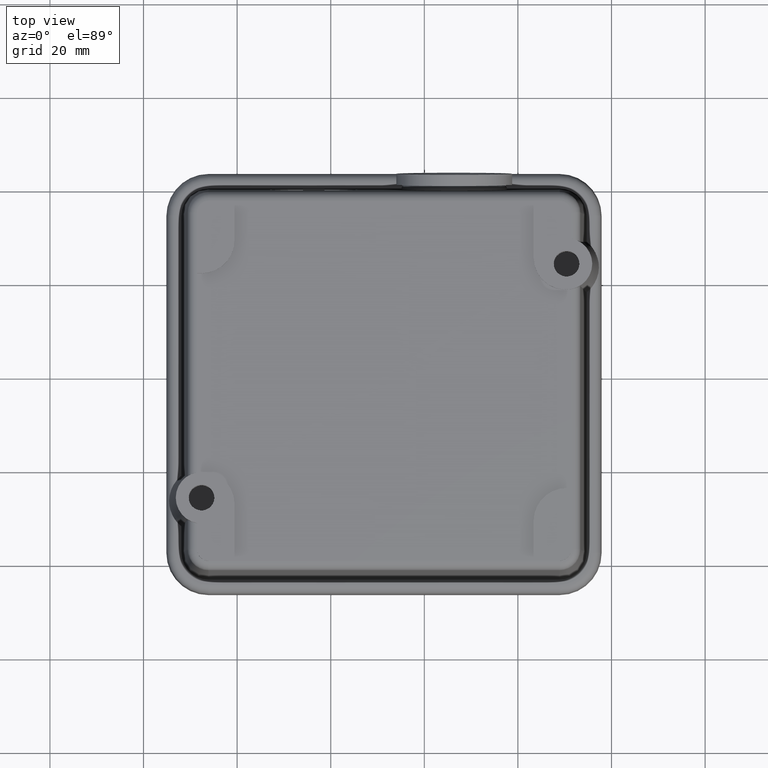
[diagram: clean part render]
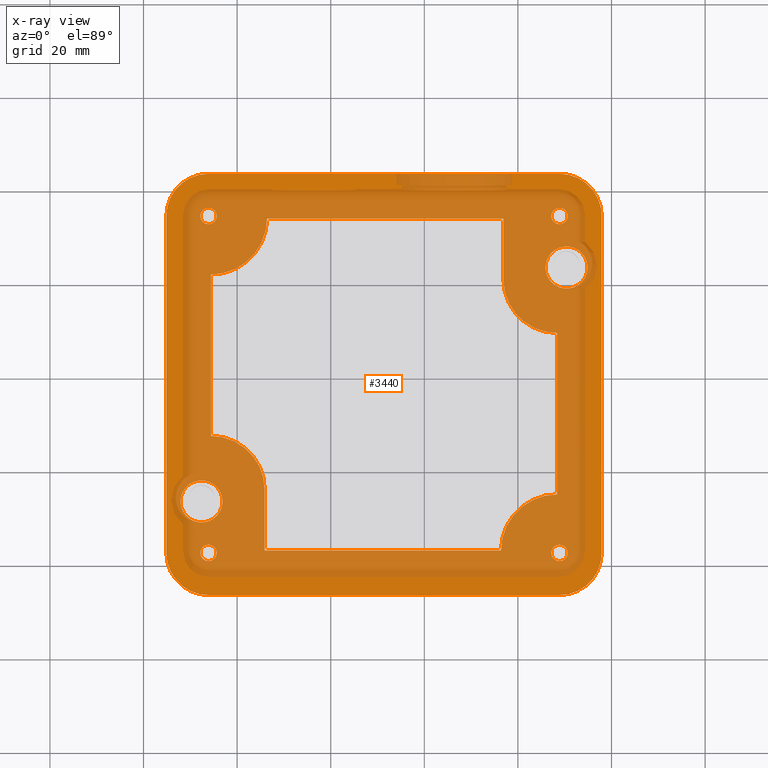
[diagram: x-ray — body ghosted, one internal face saturated and labeled with its STEP entity id]
A machine part, top view, then the same camera in x-ray: the body is ghosted and one INTERNAL B-rep face — a face not visible from any outside direction — is saturated and labeled: STEP entity #3440.
In plain terms, the highlighted planar face has unit normal (0, 0, 1).
Its self-contained STEP definition (entity closure, byte-faithful):
#1539=CARTESIAN_POINT('',(-7.864908437115615,-17.900412990563499,0.0));
#1540=VERTEX_POINT('',#1539);
#1541=CARTESIAN_POINT('',(-6.114908437115614,-17.900412990563499,0.0));
#1542=DIRECTION('',(0.0,0.0,1.0));
#1543=DIRECTION('',(1.0,0.0,0.0));
#1544=AXIS2_PLACEMENT_3D('',#1541,#1542,#1543);
#1545=CIRCLE('',#1544,1.750000000000000);
#1546=EDGE_CURVE('',#1540,#1540,#1545,.T.);
#1576=CARTESIAN_POINT('',(67.135091562884398,-17.900412990563488,0.0));
#1577=VERTEX_POINT('',#1576);
#1578=CARTESIAN_POINT('',(68.885091562884384,-17.900412990563488,0.0));
#1579=DIRECTION('',(0.0,0.0,1.0));
#1580=DIRECTION('',(1.0,0.0,0.0));
#1581=AXIS2_PLACEMENT_3D('',#1578,#1579,#1580);
#1582=CIRCLE('',#1581,1.750000000000000);
#1583=EDGE_CURVE('',#1577,#1577,#1582,.T.);
#1613=CARTESIAN_POINT('',(-7.864908437115612,54.099587009436505,0.0));
#1614=VERTEX_POINT('',#1613);
#1615=CARTESIAN_POINT('',(-6.114908437115611,54.099587009436505,0.0));
#1616=DIRECTION('',(0.0,0.0,1.0));
#1617=DIRECTION('',(1.0,0.0,0.0));
#1618=AXIS2_PLACEMENT_3D('',#1615,#1616,#1617);
#1619=CIRCLE('',#1618,1.750000000000000);
#1620=EDGE_CURVE('',#1614,#1614,#1619,.T.);
#1650=CARTESIAN_POINT('',(67.135091562884398,54.099587009436505,0.0));
#1651=VERTEX_POINT('',#1650);
#1652=CARTESIAN_POINT('',(68.885091562884384,54.099587009436505,0.0));
#1653=DIRECTION('',(0.0,0.0,1.0));
#1654=DIRECTION('',(1.0,0.0,0.0));
#1655=AXIS2_PLACEMENT_3D('',#1652,#1653,#1654);
#1656=CIRCLE('',#1655,1.750000000000000);
#1657=EDGE_CURVE('',#1651,#1651,#1656,.T.);
#2082=CARTESIAN_POINT('',(77.885091562884398,54.099587009436490,0.0));
#2083=VERTEX_POINT('',#2082);
#2090=CARTESIAN_POINT('',(68.885091562884384,63.099587009436497,0.0));
#2091=VERTEX_POINT('',#2090);
#2092=CARTESIAN_POINT('',(68.885091562884384,54.099587009436490,0.0));
#2093=DIRECTION('',(0.0,0.0,1.0));
#2094=DIRECTION('',(1.0,0.0,0.0));
#2095=AXIS2_PLACEMENT_3D('',#2092,#2093,#2094);
#2096=CIRCLE('',#2095,8.999999999999986);
#2097=EDGE_CURVE('',#2083,#2091,#2096,.T.);
#2114=CARTESIAN_POINT('',(77.885091562884384,-17.900412990563552,0.0));
#2115=VERTEX_POINT('',#2114);
#2122=CARTESIAN_POINT('',(77.885091562884384,-17.900412990563552,0.0));
#2123=DIRECTION('',(0.0,1.0,0.0));
#2124=VECTOR('',#2123,72.000000000000043);
#2125=LINE('',#2122,#2124);
#2126=EDGE_CURVE('',#2115,#2083,#2125,.T.);
#2138=CARTESIAN_POINT('',(68.885091562884369,-26.900412990563503,0.0));
#2139=VERTEX_POINT('',#2138);
#2146=CARTESIAN_POINT('',(68.885091562884469,-17.900412990563584,0.0));
#2147=DIRECTION('',(0.0,0.0,1.0));
#2148=DIRECTION('',(0.0,-1.0,0.0));
#2149=AXIS2_PLACEMENT_3D('',#2146,#2147,#2148);
#2150=CIRCLE('',#2149,8.999999999999918);
#2151=EDGE_CURVE('',#2139,#2115,#2150,.T.);
#2163=CARTESIAN_POINT('',(-6.114908437115617,-26.900412990563520,0.0));
#2164=VERTEX_POINT('',#2163);
#2171=CARTESIAN_POINT('',(-6.114908437115617,-26.900412990563520,0.0));
#2172=DIRECTION('',(1.0,0.0,0.0));
#2173=VECTOR('',#2172,74.999999999999986);
#2174=LINE('',#2171,#2173);
#2175=EDGE_CURVE('',#2164,#2139,#2174,.T.);
#2697=CARTESIAN_POINT('',(65.885091562884412,43.099587009436448,0.0));
#2698=VERTEX_POINT('',#2697);
#2699=CARTESIAN_POINT('',(70.385091562884426,43.099587009436448,0.0));
#2700=DIRECTION('',(0.0,0.0,1.0));
#2701=DIRECTION('',(-1.0,0.0,0.0));
#2702=AXIS2_PLACEMENT_3D('',#2699,#2700,#2701);
#2703=CIRCLE('',#2702,4.500000000000000);
#2704=EDGE_CURVE('',#2698,#2698,#2703,.T.);
#2799=CARTESIAN_POINT('',(-12.114908437115595,-6.900412990563566,0.0));
#2800=VERTEX_POINT('',#2799);
#2801=CARTESIAN_POINT('',(-7.614908437115594,-6.900412990563566,0.0));
#2802=DIRECTION('',(0.0,0.0,1.0));
#2803=DIRECTION('',(-1.0,0.0,0.0));
#2804=AXIS2_PLACEMENT_3D('',#2801,#2802,#2803);
#2805=CIRCLE('',#2804,4.500000000000000);
#2806=EDGE_CURVE('',#2800,#2800,#2805,.T.);
#3052=CARTESIAN_POINT('',(-15.114908437115629,-17.900412990563520,0.0));
#3053=VERTEX_POINT('',#3052);
#3060=CARTESIAN_POINT('',(-6.114908437115608,-17.900412990563499,0.0));
#3061=DIRECTION('',(0.0,0.0,1.0));
#3062=DIRECTION('',(-1.0,0.0,0.0));
#3063=AXIS2_PLACEMENT_3D('',#3060,#3061,#3062);
#3064=CIRCLE('',#3063,9.000000000000021);
#3065=EDGE_CURVE('',#3053,#2164,#3064,.T.);
#3077=CARTESIAN_POINT('',(-15.114908437115639,54.099587009436490,0.0));
#3078=VERTEX_POINT('',#3077);
#3085=CARTESIAN_POINT('',(-15.114908437115639,54.099587009436490,0.0));
#3086=DIRECTION('',(0.0,-1.0,0.0));
#3087=VECTOR('',#3086,72.000000000000014);
#3088=LINE('',#3085,#3087);
#3089=EDGE_CURVE('',#3078,#3053,#3088,.T.);
#3101=CARTESIAN_POINT('',(-6.114908437115638,63.099587009436497,0.0));
#3102=VERTEX_POINT('',#3101);
#3109=CARTESIAN_POINT('',(-6.114908437115638,54.099587009436490,0.0));
#3110=DIRECTION('',(0.0,0.0,1.0));
#3111=DIRECTION('',(0.0,1.0,0.0));
#3112=AXIS2_PLACEMENT_3D('',#3109,#3110,#3111);
#3113=CIRCLE('',#3112,8.999999999999950);
#3114=EDGE_CURVE('',#3102,#3078,#3113,.T.);
#3126=CARTESIAN_POINT('',(68.385091562882266,29.099587009445624,0.0));
#3127=VERTEX_POINT('',#3126);
#3134=CARTESIAN_POINT('',(68.385091562882252,-5.400412990580281,0.0));
#3135=VERTEX_POINT('',#3134);
#3136=CARTESIAN_POINT('',(68.385091562882252,-5.400412990580281,0.0));
#3137=DIRECTION('',(0.0,1.0,0.0));
#3138=VECTOR('',#3137,34.500000000025906);
#3139=LINE('',#3136,#3138);
#3140=EDGE_CURVE('',#3135,#3127,#3139,.T.);
#3160=CARTESIAN_POINT('',(56.385091562850384,-17.400412990563620,0.0));
#3161=VERTEX_POINT('',#3160);
#3162=CARTESIAN_POINT('',(68.385091562850391,-17.400412990580282,0.0));
#3163=DIRECTION('',(0.0,0.0,-1.0));
#3164=DIRECTION('',(-1.0,1.388704E-012,0.0));
#3165=AXIS2_PLACEMENT_3D('',#3162,#3163,#3164);
#3166=CIRCLE('',#3165,12.000000000000002);
#3167=EDGE_CURVE('',#3161,#3135,#3166,.T.);
#3185=CARTESIAN_POINT('',(5.885091562884437,-17.400412990563616,0.0));
#3186=VERTEX_POINT('',#3185);
#3187=CARTESIAN_POINT('',(5.885091562884437,-17.400412990563616,0.0));
#3188=DIRECTION('',(1.0,0.0,0.0));
#3189=VECTOR('',#3188,50.499999999965951);
#3190=LINE('',#3187,#3189);
#3191=EDGE_CURVE('',#3186,#3161,#3190,.T.);
#3209=CARTESIAN_POINT('',(5.885091562884455,-4.400412990567421,0.0));
#3210=VERTEX_POINT('',#3209);
#3211=CARTESIAN_POINT('',(5.885091562884455,-4.400412990567421,0.0));
#3212=DIRECTION('',(0.0,-1.0,0.0));
#3213=VECTOR('',#3212,12.999999999996195);
#3214=LINE('',#3211,#3213);
#3215=EDGE_CURVE('',#3210,#3186,#3214,.T.);
#3234=CARTESIAN_POINT('',(-5.614908437115460,7.099587009432550,0.0));
#3235=VERTEX_POINT('',#3234);
#3236=CARTESIAN_POINT('',(-5.614908437115513,-4.400412990567418,0.0));
#3237=DIRECTION('',(0.0,0.0,-1.0));
#3238=DIRECTION('',(0.0,1.0,0.0));
#3239=AXIS2_PLACEMENT_3D('',#3236,#3237,#3238);
#3240=CIRCLE('',#3239,11.499999999999968);
#3241=EDGE_CURVE('',#3235,#3210,#3240,.T.);
#3260=CARTESIAN_POINT('',(-5.614908437115434,41.599587009437293,0.0));
#3261=VERTEX_POINT('',#3260);
#3262=CARTESIAN_POINT('',(-5.614908437115434,41.599587009437293,0.0));
#3263=DIRECTION('',(0.0,-1.0,0.0));
#3264=VECTOR('',#3263,34.500000000004746);
#3265=LINE('',#3262,#3264);
#3266=EDGE_CURVE('',#3261,#3235,#3265,.T.);
#3286=CARTESIAN_POINT('',(6.385091562886531,53.599587009446452,0.0));
#3287=VERTEX_POINT('',#3286);
#3288=CARTESIAN_POINT('',(-5.614908437113471,53.599587009437293,0.0));
#3289=DIRECTION('',(0.0,0.0,-1.0));
#3290=DIRECTION('',(1.0,7.630933E-013,0.0));
#3291=AXIS2_PLACEMENT_3D('',#3288,#3289,#3290);
#3292=CIRCLE('',#3291,12.000000000000002);
#3293=EDGE_CURVE('',#3287,#3261,#3292,.T.);
#3311=CARTESIAN_POINT('',(56.885091562884327,53.599587009446445,0.0));
#3312=VERTEX_POINT('',#3311);
#3313=CARTESIAN_POINT('',(56.885091562884327,53.599587009446445,0.0));
#3314=DIRECTION('',(-1.0,0.0,0.0));
#3315=VECTOR('',#3314,50.499999999997797);
#3316=LINE('',#3313,#3315);
#3317=EDGE_CURVE('',#3312,#3287,#3316,.T.);
#3341=CARTESIAN_POINT('',(56.885091562884327,40.599587009445663,0.0));
#3342=VERTEX_POINT('',#3341);
#3343=CARTESIAN_POINT('',(56.885091562884327,40.599587009445663,0.0));
#3344=DIRECTION('',(0.0,1.0,0.0));
#3345=VECTOR('',#3344,13.000000000000782);
#3346=LINE('',#3343,#3345);
#3347=EDGE_CURVE('',#3342,#3312,#3346,.T.);
#3366=CARTESIAN_POINT('',(68.385091562884384,40.599587009445656,0.0));
#3367=DIRECTION('',(0.0,0.0,-1.0));
#3368=DIRECTION('',(-1.838143E-013,-1.0,0.0));
#3369=AXIS2_PLACEMENT_3D('',#3366,#3367,#3368);
#3370=CIRCLE('',#3369,11.500000000000025);
#3371=EDGE_CURVE('',#3127,#3342,#3370,.T.);
#3385=CARTESIAN_POINT('',(68.885091562884384,63.099587009436497,0.0));
#3386=DIRECTION('',(-1.0,0.0,0.0));
#3387=VECTOR('',#3386,75.000000000000028);
#3388=LINE('',#3385,#3387);
#3389=EDGE_CURVE('',#2091,#3102,#3388,.T.);
#3395=CARTESIAN_POINT('',(31.385091562884384,18.099587009436473,0.0));
#3396=DIRECTION('',(0.0,0.0,1.0));
#3397=DIRECTION('',(1.0,0.0,0.0));
#3398=AXIS2_PLACEMENT_3D('',#3395,#3396,#3397);
#3399=PLANE('',#3398);
#3400=ORIENTED_EDGE('',*,*,#3114,.F.);
#3401=ORIENTED_EDGE('',*,*,#3389,.F.);
#3402=ORIENTED_EDGE('',*,*,#2097,.F.);
#3403=ORIENTED_EDGE('',*,*,#2126,.F.);
#3404=ORIENTED_EDGE('',*,*,#2151,.F.);
#3405=ORIENTED_EDGE('',*,*,#2175,.F.);
#3406=ORIENTED_EDGE('',*,*,#3065,.F.);
#3407=ORIENTED_EDGE('',*,*,#3089,.F.);
#3408=EDGE_LOOP('',(#3400,#3401,#3402,#3403,#3404,#3405,#3406,#3407));
#3409=FACE_OUTER_BOUND('',#3408,.T.);
#3410=ORIENTED_EDGE('',*,*,#1546,.T.);
#3411=EDGE_LOOP('',(#3410));
#3412=FACE_BOUND('',#3411,.T.);
#3413=ORIENTED_EDGE('',*,*,#1583,.T.);
#3414=EDGE_LOOP('',(#3413));
#3415=FACE_BOUND('',#3414,.T.);
#3416=ORIENTED_EDGE('',*,*,#1620,.T.);
#3417=EDGE_LOOP('',(#3416));
#3418=FACE_BOUND('',#3417,.T.);
#3419=ORIENTED_EDGE('',*,*,#1657,.T.);
#3420=EDGE_LOOP('',(#3419));
#3421=FACE_BOUND('',#3420,.T.);
#3422=ORIENTED_EDGE('',*,*,#2704,.T.);
#3423=EDGE_LOOP('',(#3422));
#3424=FACE_BOUND('',#3423,.T.);
#3425=ORIENTED_EDGE('',*,*,#2806,.T.);
#3426=EDGE_LOOP('',(#3425));
#3427=FACE_BOUND('',#3426,.T.);
#3428=ORIENTED_EDGE('',*,*,#3140,.T.);
#3429=ORIENTED_EDGE('',*,*,#3371,.T.);
#3430=ORIENTED_EDGE('',*,*,#3347,.T.);
#3431=ORIENTED_EDGE('',*,*,#3317,.T.);
#3432=ORIENTED_EDGE('',*,*,#3293,.T.);
#3433=ORIENTED_EDGE('',*,*,#3266,.T.);
#3434=ORIENTED_EDGE('',*,*,#3241,.T.);
#3435=ORIENTED_EDGE('',*,*,#3215,.T.);
#3436=ORIENTED_EDGE('',*,*,#3191,.T.);
#3437=ORIENTED_EDGE('',*,*,#3167,.T.);
#3438=EDGE_LOOP('',(#3428,#3429,#3430,#3431,#3432,#3433,#3434,#3435,#3436,#3437));
#3439=FACE_BOUND('',#3438,.T.);
#3440=ADVANCED_FACE('',(#3409,#3412,#3415,#3418,#3421,#3424,#3427,#3439),#3399,.F.);